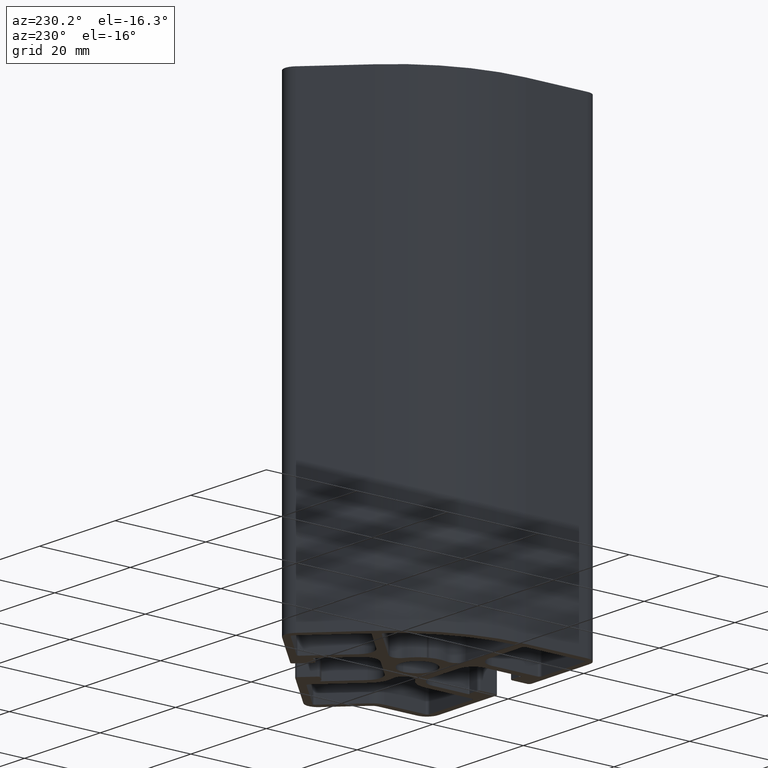
[diagram: clean part render]
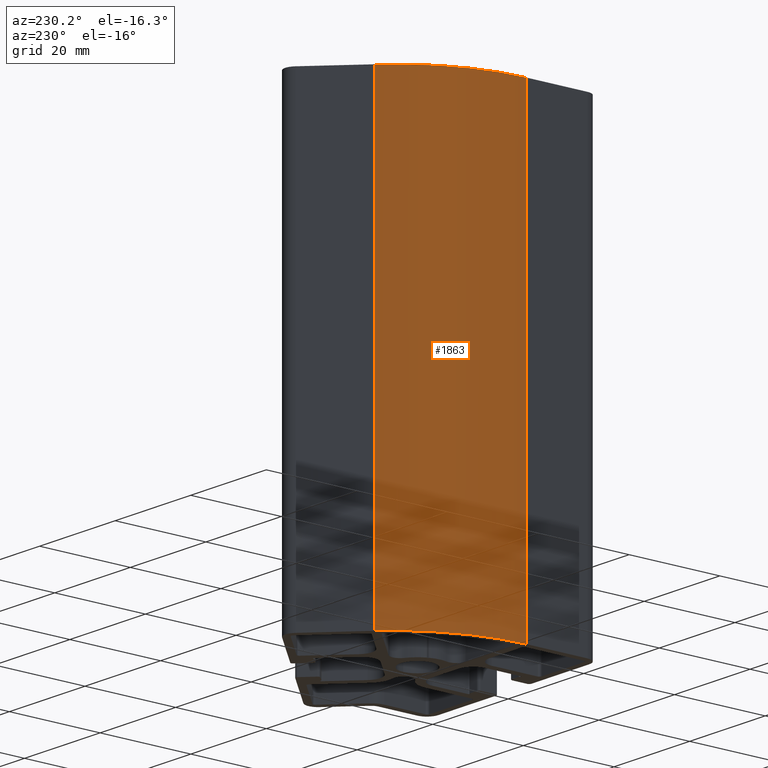
[diagram: same view with one face highlighted and labeled with its STEP entity id]
A machine part, auxiliary view. The second image highlights one B-rep face of the part: STEP entity #1863.
In plain terms, the highlighted cylindrical surface (partial cylindrical patch) has radius 35 mm, axis along (0, 0, 1).
Its self-contained STEP definition (entity closure, byte-faithful):
#106=CIRCLE('',#2040,35.);
#107=CIRCLE('',#2041,35.);
#158=CYLINDRICAL_SURFACE('',#2039,35.);
#241=FACE_OUTER_BOUND('',#336,.T.);
#336=EDGE_LOOP('',(#1494,#1495,#1496,#1497));
#512=LINE('',#3088,#695);
#514=LINE('',#3094,#697);
#695=VECTOR('',#2533,100.);
#697=VECTOR('',#2539,100.);
#883=VERTEX_POINT('',#3085);
#884=VERTEX_POINT('',#3087);
#885=VERTEX_POINT('',#3091);
#886=VERTEX_POINT('',#3093);
#1142=EDGE_CURVE('',#883,#884,#512,.T.);
#1144=EDGE_CURVE('',#883,#885,#106,.T.);
#1145=EDGE_CURVE('',#885,#886,#514,.T.);
#1146=EDGE_CURVE('',#884,#886,#107,.T.);
#1494=ORIENTED_EDGE('',*,*,#1144,.T.);
#1495=ORIENTED_EDGE('',*,*,#1145,.T.);
#1496=ORIENTED_EDGE('',*,*,#1146,.F.);
#1497=ORIENTED_EDGE('',*,*,#1142,.F.);
#1863=ADVANCED_FACE('',(#241),#158,.T.);
#2039=AXIS2_PLACEMENT_3D('',#3090,#2535,#2536);
#2040=AXIS2_PLACEMENT_3D('',#3092,#2537,#2538);
#2041=AXIS2_PLACEMENT_3D('',#3095,#2540,#2541);
#2533=DIRECTION('',(0.,0.,-1.));
#2535=DIRECTION('center_axis',(0.,0.,1.));
#2536=DIRECTION('ref_axis',(0.707106781186547,-0.707106781186548,0.));
#2537=DIRECTION('center_axis',(0.,0.,-1.));
#2538=DIRECTION('ref_axis',(0.707106781186547,-0.707106781186548,0.));
#2539=DIRECTION('',(0.,0.,-1.));
#2540=DIRECTION('center_axis',(0.,0.,-1.));
#2541=DIRECTION('ref_axis',(0.707106781186547,-0.707106781186548,0.));
#3085=CARTESIAN_POINT('',(-22.5,-5.17766952966368,100.));
#3087=CARTESIAN_POINT('',(-22.5,-5.17766952966368,0.));
#3088=CARTESIAN_POINT('',(-22.5,-5.17766952966368,0.));
#3090=CARTESIAN_POINT('Origin',(12.5,-5.17766952966368,0.));
#3091=CARTESIAN_POINT('',(-12.2487373415292,19.5710678118655,100.));
#3092=CARTESIAN_POINT('Origin',(12.5,-5.17766952966368,100.));
#3093=CARTESIAN_POINT('',(-12.2487373415292,19.5710678118655,0.));
#3094=CARTESIAN_POINT('',(-12.2487373415292,19.5710678118655,0.));
#3095=CARTESIAN_POINT('Origin',(12.5,-5.17766952966368,0.));